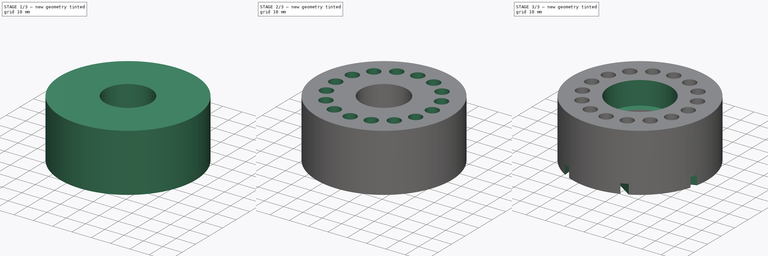
[diagram: build sequence overview — one tinted view per stage of 3, left to right]
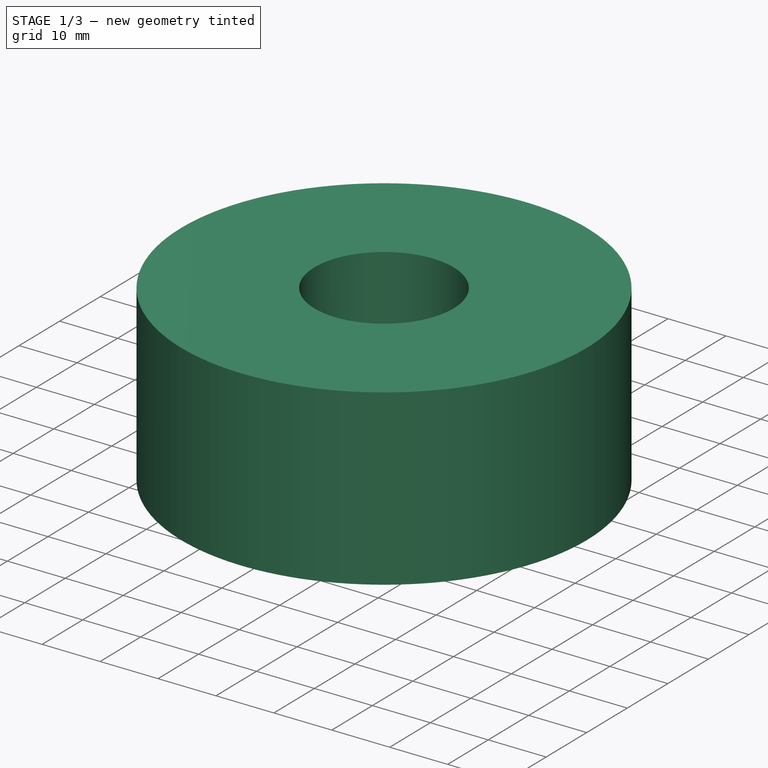
[diagram: stage 1 of 3 — iso view after this stage's code; geometry added in this stage tinted green]
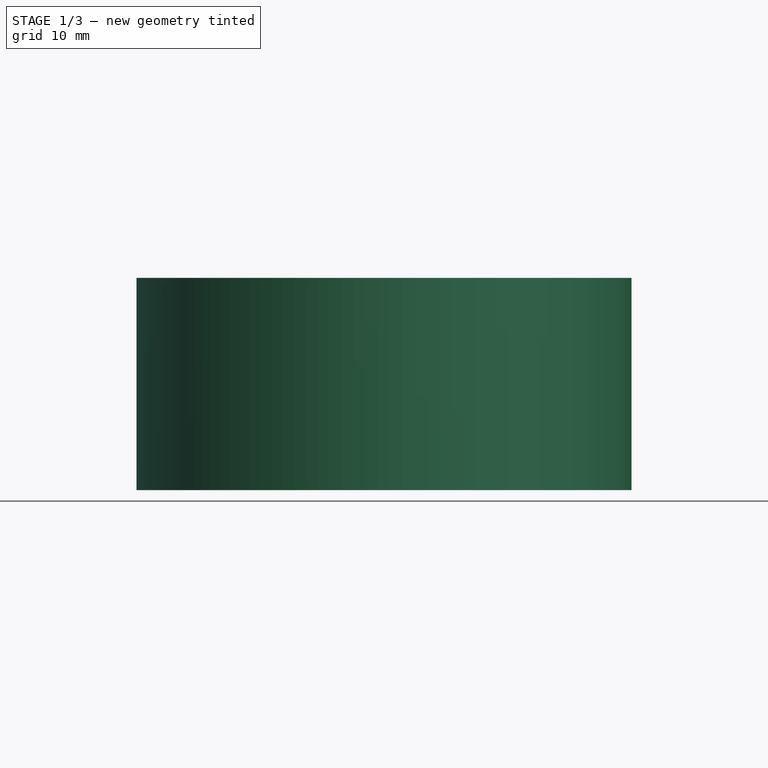
[diagram: stage 1 of 3 — front view after this stage's code; geometry added in this stage tinted green]
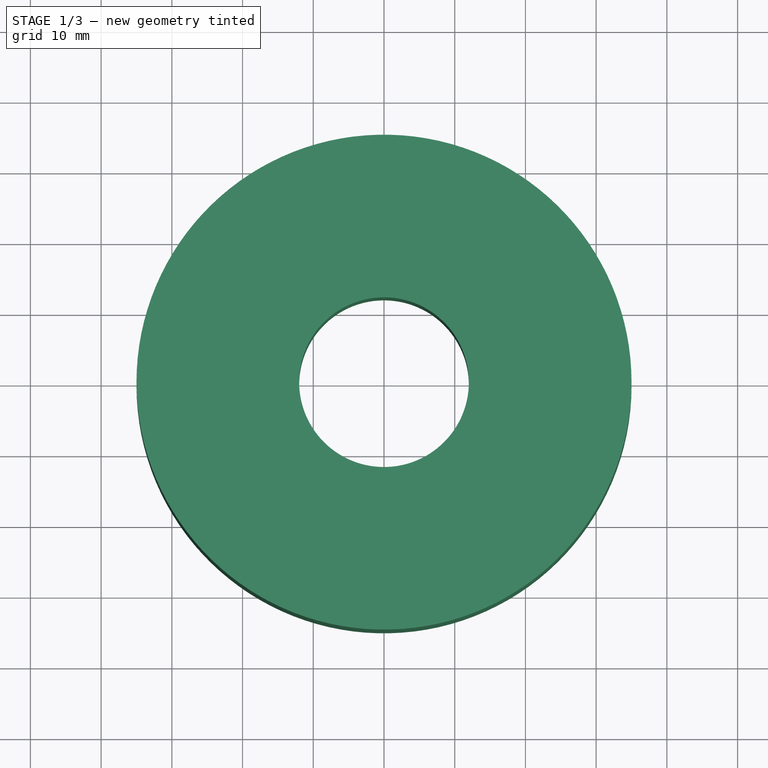
[diagram: stage 1 of 3 — top view after this stage's code; geometry added in this stage tinted green]
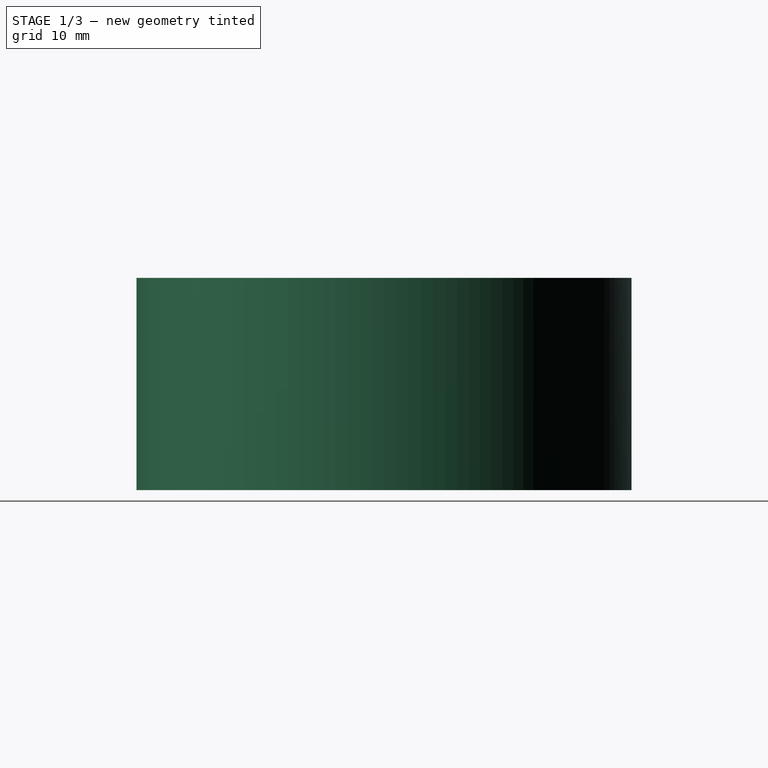
[diagram: stage 1 of 3 — right view after this stage's code; geometry added in this stage tinted green]
FCSTD DOCUMENT  (FreeCAD 0.16R)
Label: brake
License: All rights reserved
LicenseURL: http://en.wikipedia.org/wiki/All_rights_reserved
objects: Sketcher::SketchObject×6, PartDesign::Pocket×5, PartDesign::PolarPattern×2, PartDesign::Pad×1
note: 20 computed .brp shape members not serialized (recipe doc carries the construction recipe); baked Part::Feature solids carry a one-line shape summary decoded from their .brp

FEATURE [Sketcher::SketchObject] Sketch
  sketch-geometry (1):
    g0: Circle CenterX=0 CenterY=0 CenterZ=0 NormalX=0 NormalY=0 NormalZ=1 Radius=35
  constraints (2):
    c: Coincident(g0,g-1)
    c: Radius(g0) = 35
FEATURE [PartDesign::Pad] Pad
  Length = 30
  Length2 = 100
  Sketch = -> Sketch
  Type = 0
FEATURE [Sketcher::SketchObject] Sketch001
  Placement = pos=(0,0,0) rot=(1,0,0;3.14159rad)
  Support = -> Pad [Face2]
  sketch-geometry (1):
    g0: Circle CenterX=0 CenterY=0 CenterZ=0 NormalX=0 NormalY=0 NormalZ=1 Radius=12
  constraints (2):
    c: Coincident(g0,g-1)
    c: Radius(g0) = 12
FEATURE [PartDesign::Pocket] Pocket
  Length = 5
  Sketch = -> Sketch001
  Type = 1
FEATURE [Sketcher::SketchObject] Sketch002
  Placement = pos=(0,0,0) rot=(1,0,0;3.14159rad)
  Support = -> Pocket [Face2]
  sketch-geometry (1):
    g0: Circle CenterX=0 CenterY=0 CenterZ=0 NormalX=0 NormalY=0 NormalZ=1 Radius=26
  constraints (2):
    c: Coincident(g0,g-1)
    c: Radius(g0) = 26
FEATURE [PartDesign::Pocket] Pocket001
  Length = 5
  Sketch = -> Sketch002
  Type = 0
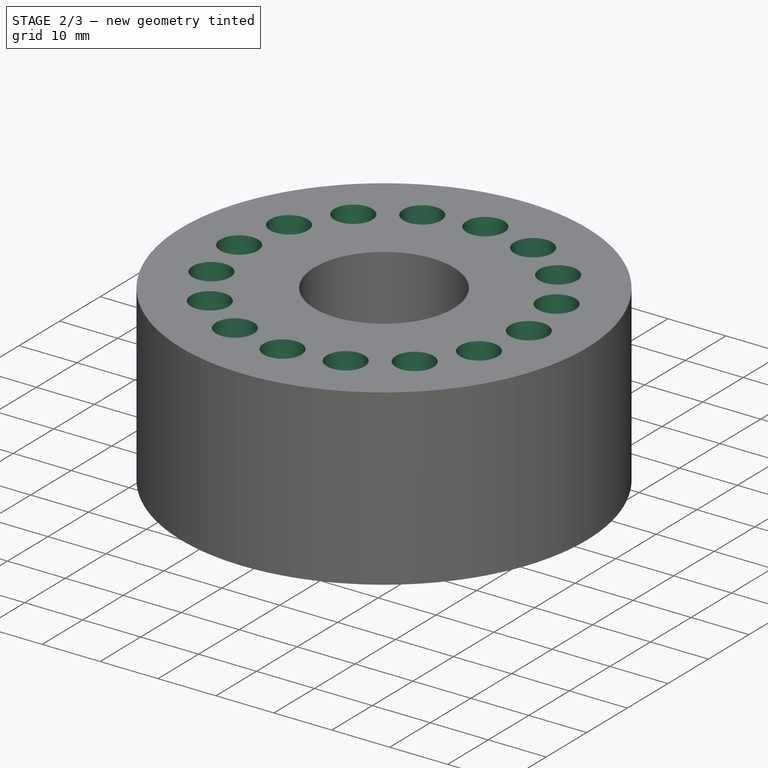
[diagram: stage 2 of 3 — iso view after this stage's code; geometry added in this stage tinted green]
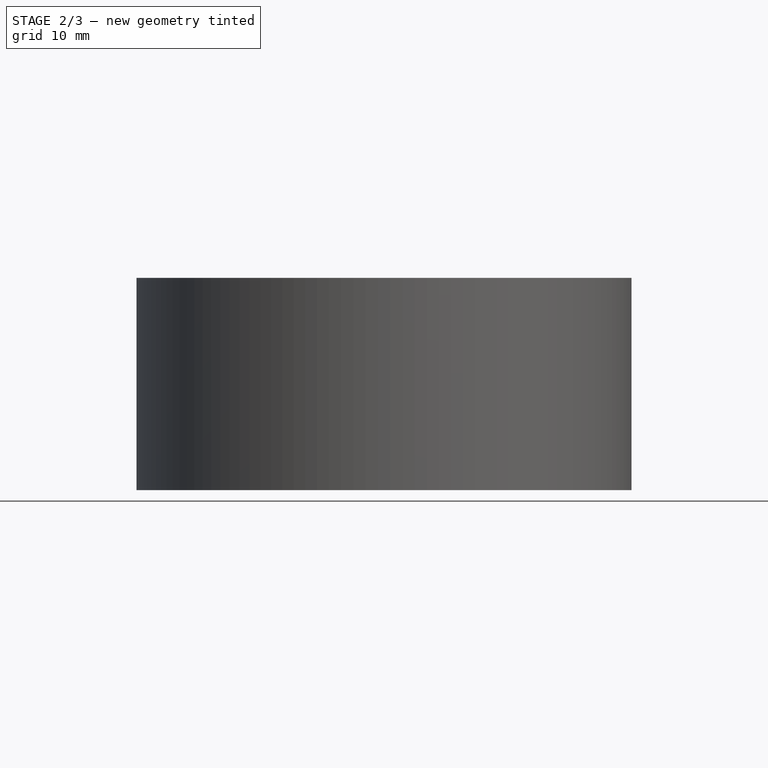
[diagram: stage 2 of 3 — front view after this stage's code; geometry added in this stage tinted green]
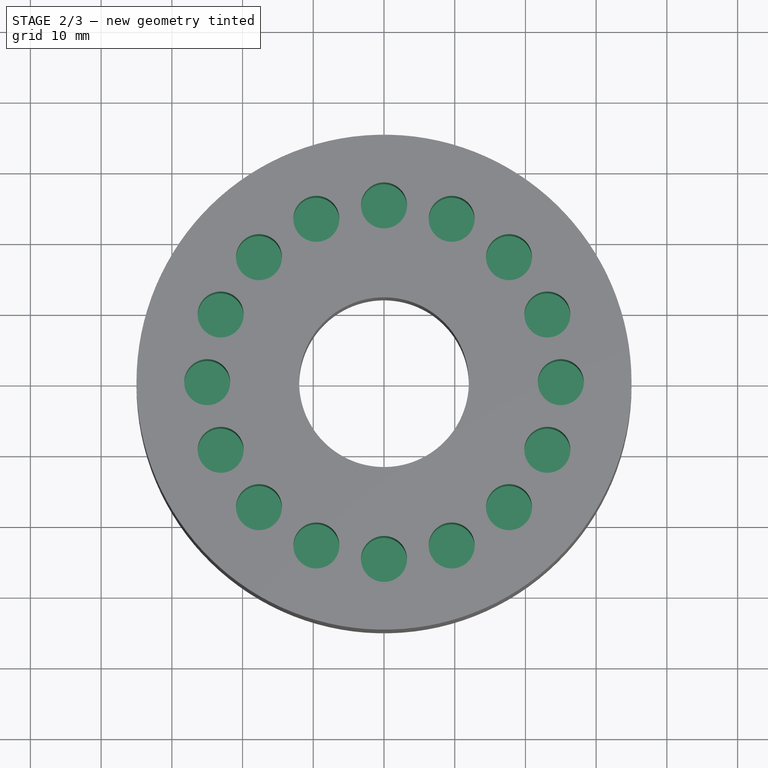
[diagram: stage 2 of 3 — top view after this stage's code; geometry added in this stage tinted green]
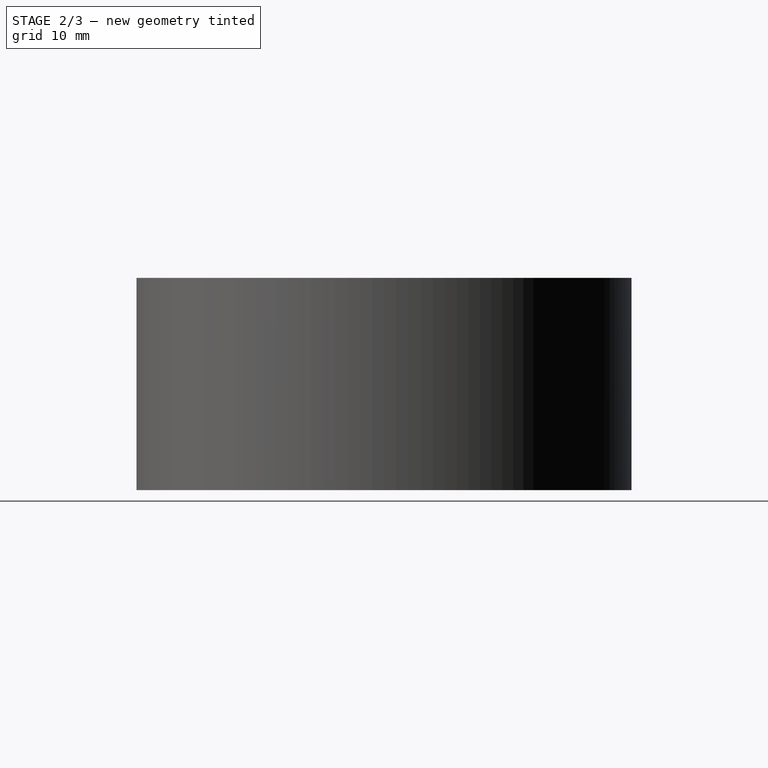
[diagram: stage 2 of 3 — right view after this stage's code; geometry added in this stage tinted green]
FEATURE [Sketcher::SketchObject] Sketch003
  Placement = pos=(0,0,30) rot=(0,0,1;0rad)
  Support = -> Pocket001 [Face3]
  sketch-geometry (1):
    g0: Circle CenterX=0 CenterY=25 CenterZ=0 NormalX=0 NormalY=0 NormalZ=1 Radius=3.25
  constraints (3):
    c: PointOnObject(g0,g-2)
    c: Distance(g-1,g0) = 25
    c: Radius(g0) = 3.25
FEATURE [PartDesign::Pocket] Pocket002
  Length = 15
  Sketch = -> Sketch003
  Type = 0
FEATURE [PartDesign::PolarPattern] PolarPattern
  Angle = 360
  Axis = -> Sketch003 [N_Axis]
  Occurrences = 16
  Originals = -> [Pocket002]
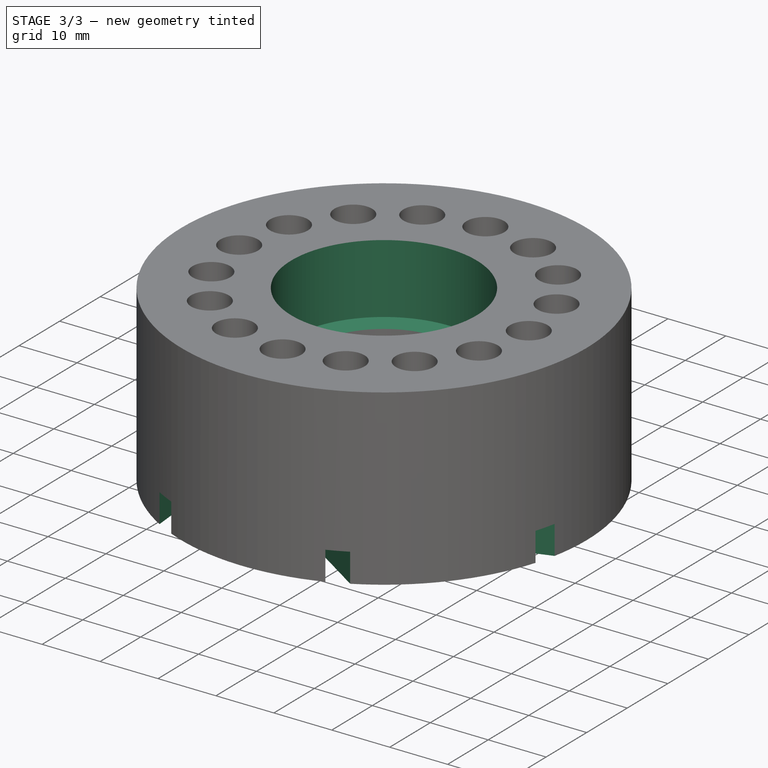
[diagram: stage 3 of 3 — iso view after this stage's code; geometry added in this stage tinted green]
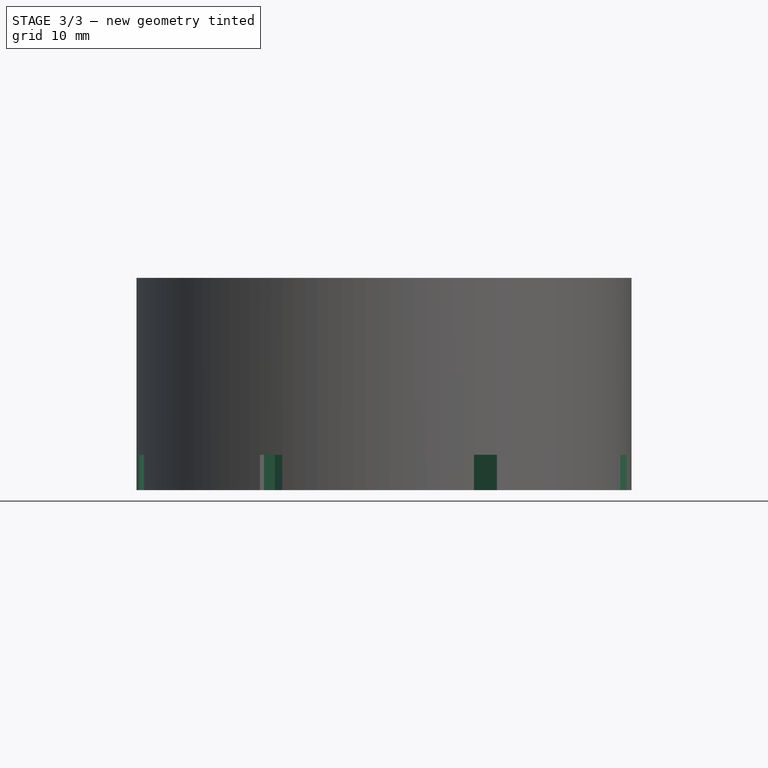
[diagram: stage 3 of 3 — front view after this stage's code; geometry added in this stage tinted green]
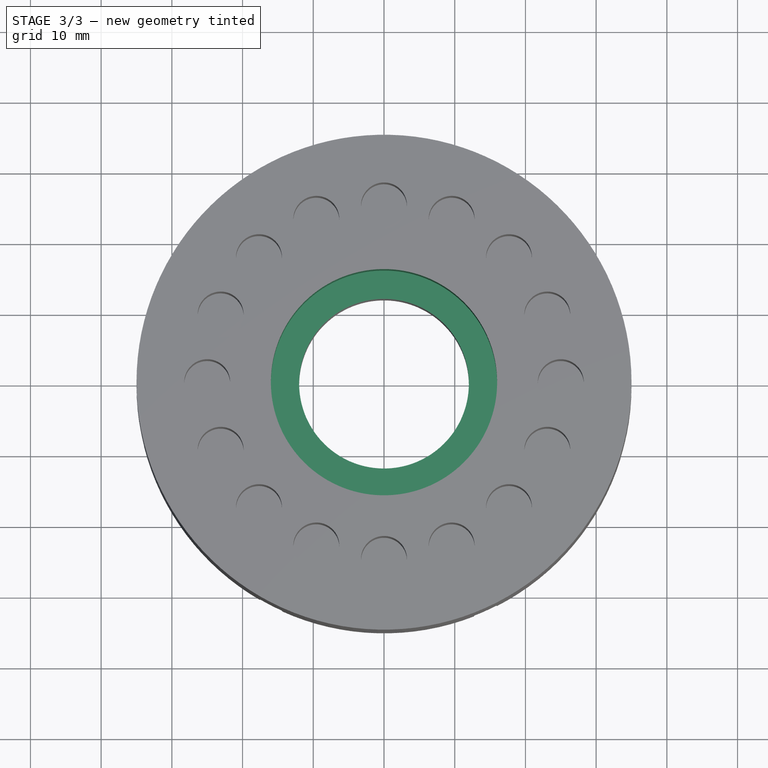
[diagram: stage 3 of 3 — top view after this stage's code; geometry added in this stage tinted green]
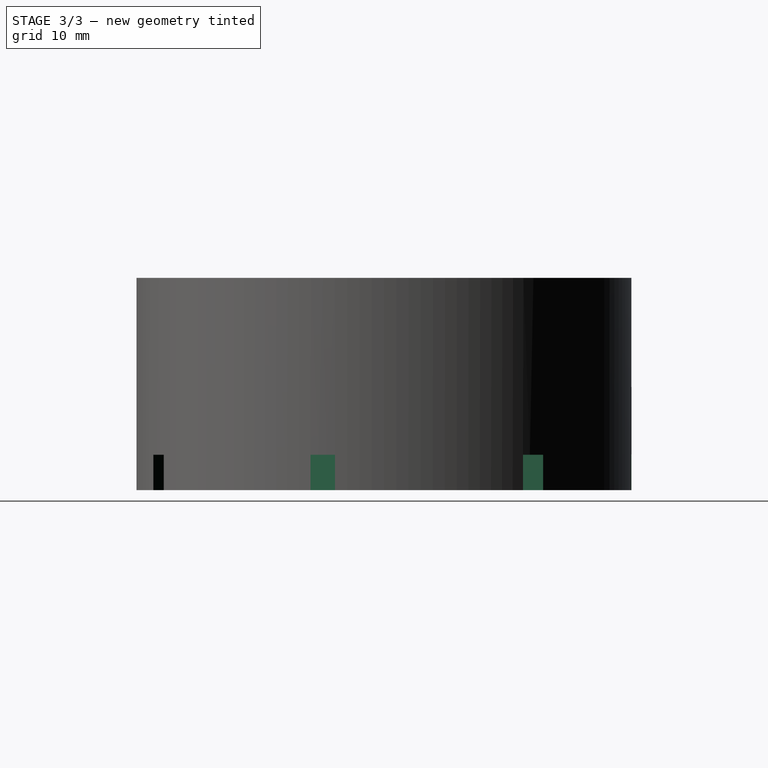
[diagram: stage 3 of 3 — right view after this stage's code; geometry added in this stage tinted green]
FEATURE [Sketcher::SketchObject] Sketch004
  Placement = pos=(0,0,30) rot=(0,0,1;0rad)
  Support = -> PolarPattern [Face3]
  sketch-geometry (1):
    g0: Circle CenterX=0 CenterY=0 CenterZ=0 NormalX=0 NormalY=0 NormalZ=1 Radius=16
  constraints (2):
    c: Coincident(g0,g-1)
    c: Radius(g0) = 16
FEATURE [PartDesign::Pocket] Pocket003
  Length = 12
  Sketch = -> Sketch004
  Type = 0
FEATURE [Sketcher::SketchObject] Sketch005
  Placement = pos=(0,0,0) rot=(1,0,0;3.14159rad)
  Support = -> Pocket003 [Face2]
  sketch-geometry (50):
    g0: Circle [constr] CenterX=0 CenterY=0 CenterZ=0 NormalX=0 NormalY=0 NormalZ=1 Radius=22.5
    g1: Circle [constr] CenterX=0 CenterY=0 CenterZ=0 NormalX=0 NormalY=0 NormalZ=1 Radius=198
    g2: GeomPoint [constr] X=0 Y=22.5 Z=0
    g3: LineSegment [constr] StartX=0 StartY=0 StartZ=0 EndX=-17.5842 EndY=14.0373 EndZ=0
    g4: LineSegment [constr] StartX=0 StartY=0 StartZ=0 EndX=0 EndY=22.5 EndZ=0
    g5: LineSegment [constr] StartX=0 StartY=0 StartZ=0 EndX=21.9321 EndY=5.02313 EndZ=0
    g6: LineSegment [constr] StartX=0 StartY=0 StartZ=0 EndX=17.6087 EndY=-14.0066 EndZ=0
    g7: LineSegment [constr] StartX=0 StartY=0 StartZ=0 EndX=0.0392699 EndY=-22.5 EndZ=0
    g8: LineSegment [constr] StartX=0 StartY=0 StartZ=0 EndX=-17.5597 EndY=-14.068 EndZ=0
    g9: LineSegment [constr] StartX=0 StartY=0 StartZ=0 EndX=-21.9233 EndY=-5.0614 EndZ=0
    g10: LineSegment [constr] StartX=0 StartY=0 StartZ=0 EndX=-21.9321 EndY=5.02313 EndZ=0
    g11: LineSegment [constr] StartX=0 StartY=0 StartZ=0 EndX=-9.75733 EndY=20.2742 EndZ=0
    g12: LineSegment [constr] StartX=0 StartY=0 StartZ=0 EndX=21.9409 EndY=-4.98484 EndZ=0
    g13: LineSegment [constr] StartX=0 StartY=0 StartZ=0 EndX=9.7927 EndY=-20.2572 EndZ=0
    g14: LineSegment [constr] StartX=0 StartY=0 StartZ=0 EndX=-9.72193 EndY=-20.2912 EndZ=0
    g15: LineSegment [constr] StartX=0 StartY=0 StartZ=0 EndX=9.75733 EndY=20.2742 EndZ=0
    g16: LineSegment [constr] StartX=0 StartY=0 StartZ=0 EndX=17.5842 EndY=14.0373 EndZ=0
    g17: LineSegment [constr] StartX=9.75733 StartY=20.2742 StartZ=0 EndX=-86.0646 EndY=178.317 EndZ=0
    g18: LineSegment [constr] StartX=21.9321 StartY=5.02313 StartZ=0 EndX=85.7533 EndY=178.467 EndZ=0
    g19: LineSegment [constr] StartX=17.6087 StartY=-14.0066 StartZ=0 EndX=192.997 EndY=44.2276 EndZ=0
    g20: LineSegment [constr] StartX=-9.75733 StartY=20.2742 StartZ=0 EndX=-193.074 EndY=43.8907 EndZ=0
    g21: LineSegment [constr] StartX=-21.9321 StartY=5.02313 StartZ=0 EndX=-22.4207 EndY=5.27208 EndZ=0
    g22: LineSegment [constr] StartX=-22.4207 StartY=5.27208 StartZ=0 EndX=-154.695 EndY=-123.586 EndZ=0
    g23: LineSegment [constr] StartX=-17.5597 StartY=-14.068 StartZ=0 EndX=0.172788 EndY=-198 EndZ=0
    g24: LineSegment [constr] StartX=0.0392699 StartY=-22.5 StartZ=0 EndX=154.91 EndY=-123.316 EndZ=0
    g25: LineSegment [constr] StartX=17.5842 StartY=14.0373 StartZ=0 EndX=193.074 EndY=-43.8907 EndZ=0
    g26: LineSegment [constr] StartX=21.9409 StartY=-4.98484 StartZ=0 EndX=86.0646 EndY=-178.317 EndZ=0
    g27: LineSegment [constr] StartX=9.7927 StartY=-20.2572 StartZ=0 EndX=-85.7533 EndY=-178.467 EndZ=0
    g28: LineSegment [constr] StartX=-9.72193 StartY=-20.2912 StartZ=0 EndX=-192.997 EndY=-44.2276 EndZ=0
    g29: LineSegment [constr] StartX=-21.9233 StartY=-5.0614 StartZ=0 EndX=-154.91 EndY=123.316 EndZ=0
    g30: LineSegment [constr] StartX=-17.5842 StartY=14.0373 StartZ=0 EndX=-0.172788 EndY=198 EndZ=0
    g31: LineSegment [constr] StartX=0 StartY=22.5 StartZ=0 EndX=154.695 EndY=123.586 EndZ=0
    g32: LineSegment [constr] StartX=-86.0646 StartY=178.317 StartZ=0 EndX=-0.172788 EndY=198 EndZ=0
    g33: LineSegment [constr] StartX=-0.172788 StartY=198 StartZ=0 EndX=85.7533 EndY=178.467 EndZ=0
    g34: LineSegment [constr] StartX=85.7533 StartY=178.467 StartZ=0 EndX=154.695 EndY=123.586 EndZ=0
    g35: LineSegment [constr] StartX=154.695 StartY=123.586 StartZ=0 EndX=192.997 EndY=44.2276 EndZ=0
    g36: LineSegment [constr] StartX=192.997 StartY=44.2276 StartZ=0 EndX=193.074 EndY=-43.8907 EndZ=0
    g37: LineSegment [constr] StartX=193.074 StartY=-43.8907 StartZ=0 EndX=154.91 EndY=-123.316 EndZ=0
    g38: LineSegment [constr] StartX=154.91 StartY=-123.316 StartZ=0 EndX=86.0646 EndY=-178.317 EndZ=0
    g39: LineSegment [constr] StartX=86.0646 StartY=-178.317 StartZ=0 EndX=0.172788 EndY=-198 EndZ=0
    g40: LineSegment [constr] StartX=0.172788 StartY=-198 StartZ=0 EndX=-85.7533 EndY=-178.467 EndZ=0
    g41: LineSegment [constr] StartX=-85.7533 StartY=-178.467 StartZ=0 EndX=-154.695 EndY=-123.586 EndZ=0
    g42: LineSegment [constr] StartX=-154.695 StartY=-123.586 StartZ=0 EndX=-192.997 EndY=-44.2276 EndZ=0
    g43: LineSegment [constr] StartX=-192.997 StartY=-44.2276 StartZ=0 EndX=-193.074 EndY=43.8907 EndZ=0
    g44: LineSegment [constr] StartX=-193.074 StartY=43.8907 StartZ=0 EndX=-154.91 EndY=123.316 EndZ=0
    g45: LineSegment [constr] StartX=-154.91 StartY=123.316 StartZ=0 EndX=-86.0646 EndY=178.317 EndZ=0
    g46: LineSegment StartX=19.4714 StartY=37.0155 StartZ=0 EndX=21.1125 EndY=34.5042 EndZ=0
    g47: LineSegment StartX=21.1125 StartY=34.5042 StartZ=0 EndX=-4.00111 EndY=18.0936 EndZ=0
    g48: LineSegment StartX=-4.00111 StartY=18.0936 StartZ=0 EndX=-5.64217 EndY=20.605 EndZ=0
    g49: LineSegment StartX=-5.64217 StartY=20.605 StartZ=0 EndX=19.4714 EndY=37.0155 EndZ=0
  constraints (129):
    c: Coincident(g0,g-1)
    c: Radius(g0) = 22.5
    c: Coincident(g1,g-1)
    c: Radius(g1) = 198
    c: Coincident(g3,g-1)
    c: Coincident(g4,g-1)
    c: Coincident(g5,g-1)
    c: Coincident(g6,g-1)
    c: Coincident(g7,g-1)
    c: Coincident(g9,g-1)
    c: Coincident(g10,g-1)
    c: Coincident(g12,g-1)
    c: Coincident(g13,g-1)
    c: Coincident(g14,g-1)
    c: Coincident(g15,g11)
    c: PointOnObject(g16,g5)
    c: Coincident(g8,g-1)
    c: Coincident(g11,g-1)
    c: Coincident(g16,g-1)
    c: Angle(g3,g10) = 0.44855
    c: Angle(g11,g3) = 0.44855
    c: Angle(g4,g11) = 0.44855
    c: Angle(g15,g4) = 0.44855
    c: Angle(g16,g15) = 0.44855
    c: Angle(g5,g16) = 0.44855
    c: Angle(g12,g5) = 0.44855
    c: Angle(g6,g12) = 0.44855
    c: Angle(g13,g6) = 0.44855
    c: Angle(g7,g13) = 0.44855
    c: Angle(g14,g7) = 0.44855
    c: Angle(g8,g14) = 0.44855
    c: Angle(g9,g8) = 0.44855
    c: PointOnObject(g4,g-2)
    c: PointOnObject(g4,g0)
    c: PointOnObject(g5,g0)
    c: PointOnObject(g16,g0)
    c: PointOnObject(g12,g0)
    c: PointOnObject(g6,g0)
    c: PointOnObject(g13,g0)
    c: PointOnObject(g7,g0)
    c: PointOnObject(g14,g0)
    c: PointOnObject(g8,g0)
    c: PointOnObject(g10,g0)
    c: PointOnObject(g3,g0)
    c: PointOnObject(g11,g0)
    c: PointOnObject(g15,g0)
    c: PointOnObject(g9,g0)
    c: Coincident(g17,g15)
    c: PointOnObject(g17,g1)
    c: Coincident(g18,g5)
    c: PointOnObject(g18,g1)
    c: Coincident(g19,g6)
    c: PointOnObject(g19,g1)
    c: Coincident(g20,g11)
    c: PointOnObject(g20,g1)
    c: Coincident(g22,g21)
    c: PointOnObject(g22,g1)
    c: Coincident(g23,g8)
    c: PointOnObject(g23,g1)
    c: Coincident(g24,g7)
    c: PointOnObject(g24,g1)
    c: Coincident(g25,g16)
    c: PointOnObject(g25,g1)
    c: Coincident(g26,g12)
    c: PointOnObject(g26,g1)
    c: Coincident(g27,g13)
    c: PointOnObject(g27,g1)
    c: Coincident(g28,g14)
    c: PointOnObject(g28,g1)
    c: Coincident(g29,g9)
    c: PointOnObject(g29,g1)
    c: Coincident(g30,g3)
    c: PointOnObject(g30,g1)
    c: Coincident(g32,g17)
    c: Coincident(g32,g30)
    c: Coincident(g30,g33)
    c: Coincident(g33,g18)
    c: Coincident(g33,g34)
    c: Coincident(g34,g31)
    c: Coincident(g34,g35)
    c: Coincident(g35,g19)
    c: Coincident(g35,g36)
    c: Coincident(g36,g25)
    c: Coincident(g36,g37)
    c: Coincident(g37,g24)
    c: Coincident(g37,g38)
    c: Coincident(g38,g26)
    c: Coincident(g38,g39)
    c: Coincident(g39,g23)
    c: Coincident(g39,g40)
    c: Coincident(g40,g27)
    c: Coincident(g40,g41)
    c: Coincident(g41,g22)
    c: Coincident(g41,g42)
    c: Coincident(g42,g28)
    c: Coincident(g42,g43)
    c: Coincident(g43,g20)
    c: Coincident(g43,g44)
    c: Coincident(g44,g29)
    c: Coincident(g44,g45)
    c: Coincident(g45,g17)
    c: PointOnObject(g31,g1)
    c: Equal(g36,g35)
    c: Equal(g35,g34)
    c: Equal(g34,g33)
    c: Equal(g33,g32)
    c: Equal(g32,g45)
    c: Equal(g45,g44)
    c: Equal(g44,g43)
    c: Equal(g43,g42)
    c: Equal(g42,g41)
    c: Equal(g41,g40)
    c: Equal(g40,g39)
    c: Equal(g39,g38)
    c: Equal(g38,g37)
    c: Equal(g25,g19)
    c: Coincident(g46,g47)
    c: Coincident(g47,g48)
    c: Coincident(g48,g49)
    c: Coincident(g49,g46)
    c: Parallel(g47,g49)
    c: Parallel(g46,g48)
    c: Symmetric(g47,g48,g31)
    c: Coincident(g31,g2)
    c: Symmetric(g46,g46,g31)
    c: Distance(g46) = 3
    c: Distance(g47) = 30
    c: Coincident(g2,g4)
    c: DistanceY(g47) = 18.0936
FEATURE [PartDesign::Pocket] Pocket004
  Length = 5
  Sketch = -> Sketch005
  Type = 0
FEATURE [PartDesign::PolarPattern] PolarPattern001
  Angle = 360
  Axis = -> Sketch005 [N_Axis]
  Occurrences = 7
  Originals = -> [Pocket004]
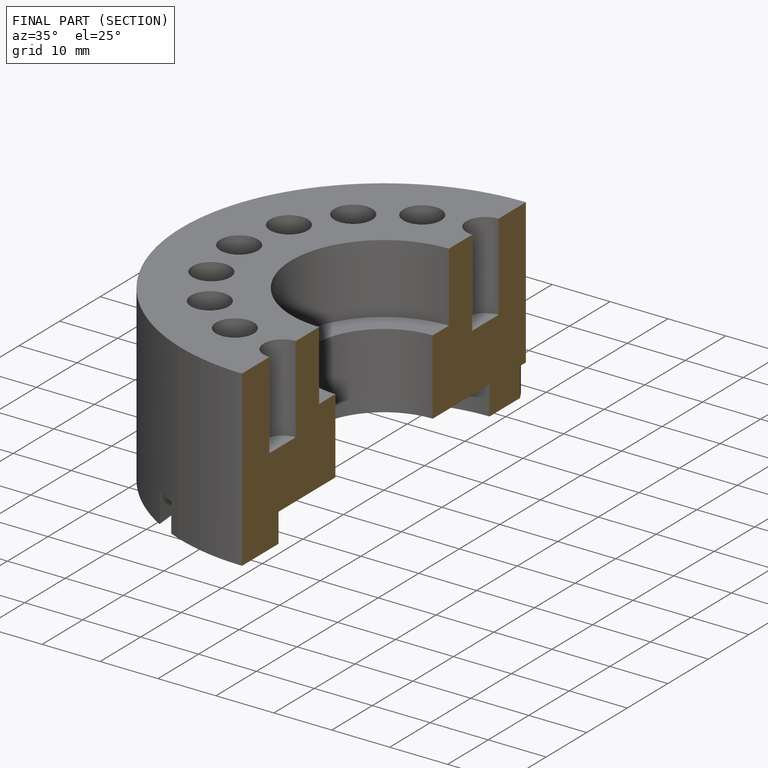
[diagram: finished part — half-section view (interior)]
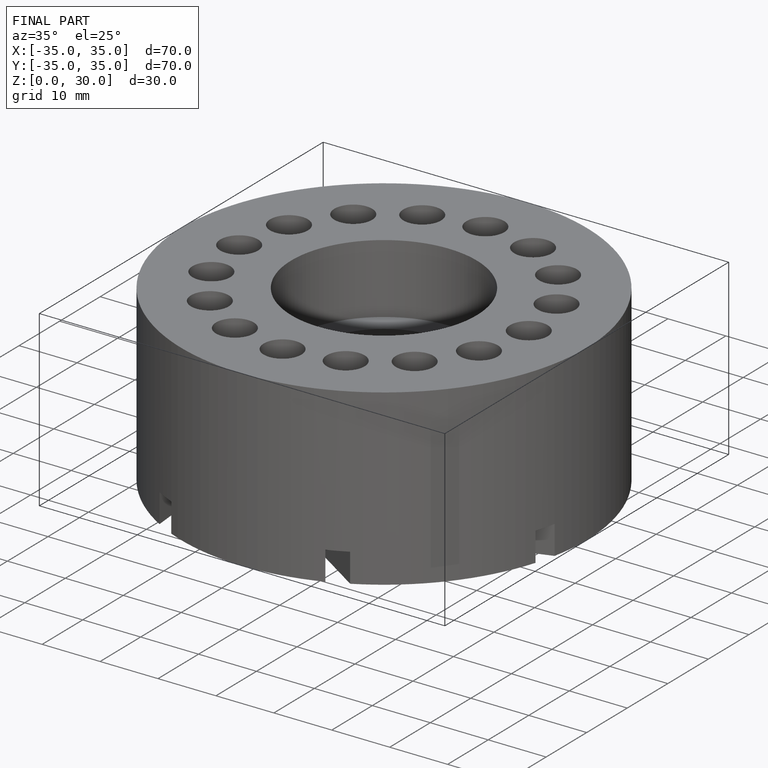
[diagram: finished part — iso view with bounding-box wireframe]
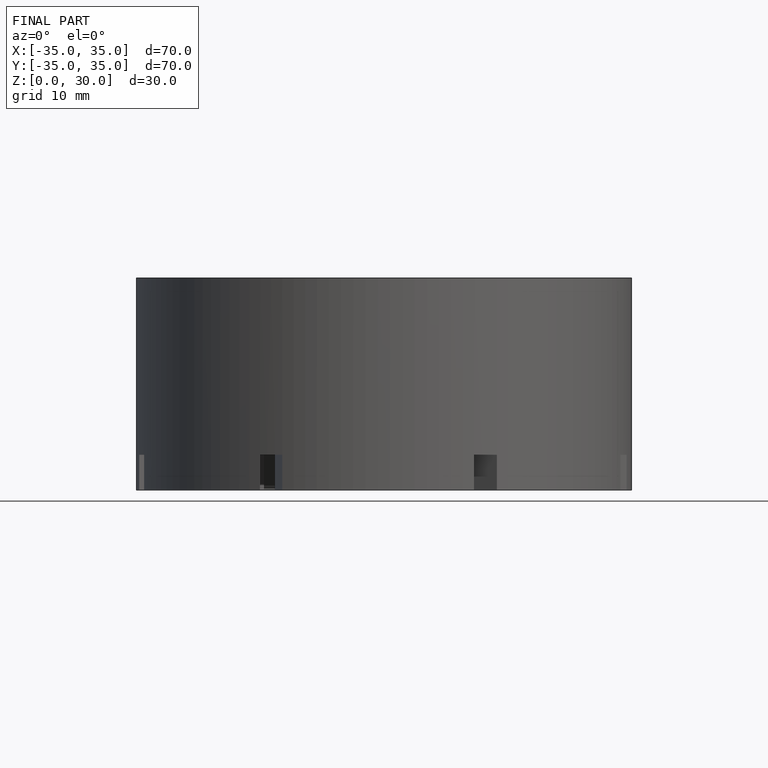
[diagram: finished part — front view with bounding-box wireframe]
